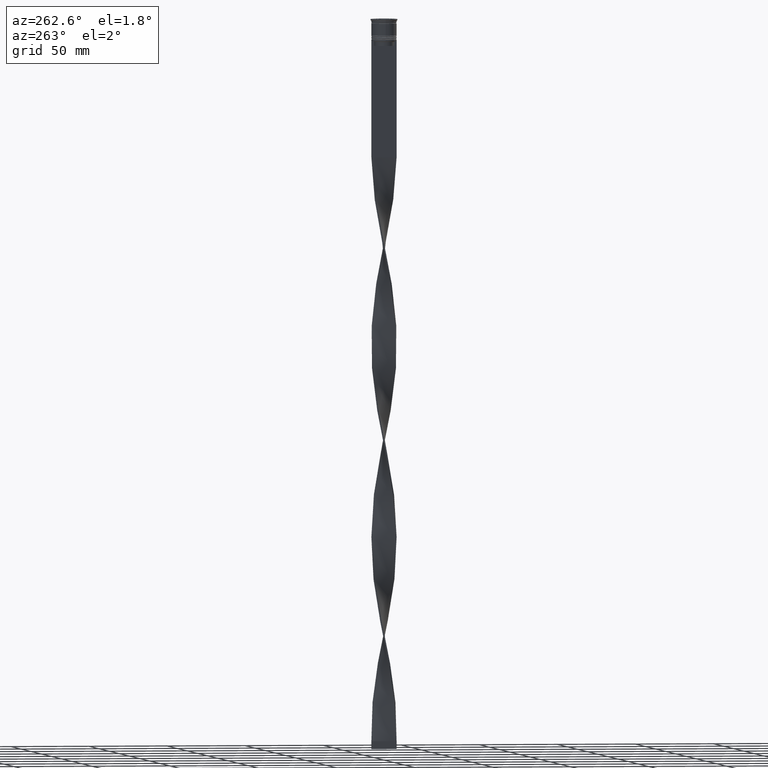
[diagram: clean part render]
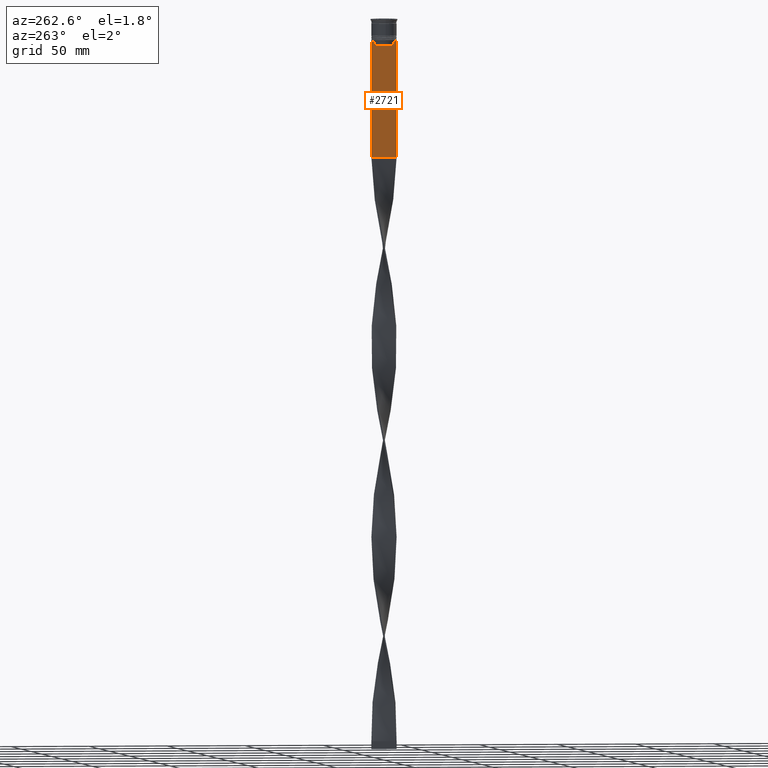
[diagram: same view with one face highlighted and labeled with its STEP entity id]
A machine part, auxiliary view. The second image highlights one B-rep face of the part: STEP entity #2721.
In plain terms, the highlighted planar face has unit normal (-1, 0, 0).
Its self-contained STEP definition (entity closure, byte-faithful):
#91 = EDGE_CURVE ( 'NONE', #1375, #359, #1777, .T. ) ;
#107 = VECTOR ( 'NONE', #3423, 1000.000000000000000 ) ;
#127 = CARTESIAN_POINT ( 'NONE',  ( -0.4999999999999998890, 6.399999999999999467, -17.00000000000000000 ) ) ;
#147 = CARTESIAN_POINT ( 'NONE',  ( -0.4999999999999998890, -8.000000000000003553, -14.00000000000000178 ) ) ;
#212 = ORIENTED_EDGE ( 'NONE', *, *, #4266, .F. ) ;
#222 = CARTESIAN_POINT ( 'NONE',  ( -0.4999999999999998890, -8.000000000000003553, -88.00000000000000000 ) ) ;
#232 = CARTESIAN_POINT ( 'NONE',  ( -0.4999999999999998890, 7.884161337770806632, -14.00000000000000178 ) ) ;
#329 = VERTEX_POINT ( 'NONE', #1553 ) ;
#349 = ORIENTED_EDGE ( 'NONE', *, *, #889, .F. ) ;
#357 = EDGE_CURVE ( 'NONE', #874, #2316, #3527, .T. ) ;
#359 = VERTEX_POINT ( 'NONE', #2135 ) ;
#362 = VERTEX_POINT ( 'NONE', #4118 ) ;
#468 = CARTESIAN_POINT ( 'NONE',  ( -0.4999999999999998890, 6.380438856379708312, 0.000000000000000000 ) ) ;
#508 = LINE ( 'NONE', #127, #3241 ) ;
#524 = PLANE ( 'NONE',  #3510 ) ;
#559 = DIRECTION ( 'NONE',  ( -1.000000000000000000, 0.000000000000000000, 0.000000000000000000 ) ) ;
#568 = LINE ( 'NONE', #4231, #1693 ) ;
#598 = EDGE_CURVE ( 'NONE', #2487, #1923, #1904, .T. ) ;
#746 = CARTESIAN_POINT ( 'NONE',  ( -0.4999999999999998890, -8.000000000000003553, -14.00000000000000178 ) ) ;
#766 = DIRECTION ( 'NONE',  ( 0.000000000000000000, -1.000000000000000000, 0.000000000000000000 ) ) ;
#803 = CARTESIAN_POINT ( 'NONE',  ( -0.4999999999999998890, -6.547597841511246131, -14.33335192438652328 ) ) ;
#845 = FACE_OUTER_BOUND ( 'NONE', #1794, .T. ) ;
#874 = VERTEX_POINT ( 'NONE', #3183 ) ;
#889 = EDGE_CURVE ( 'NONE', #362, #874, #568, .T. ) ;
#915 = CARTESIAN_POINT ( 'NONE',  ( -0.4999999999999998890, -8.000000000000003553, 2.031219541881394530 ) ) ;
#917 = DIRECTION ( 'NONE',  ( 0.000000000000000000, -1.000000000000000000, 0.000000000000000000 ) ) ;
#945 = ORIENTED_EDGE ( 'NONE', *, *, #91, .F. ) ;
#1015 = CARTESIAN_POINT ( 'NONE',  ( -0.4999999999999998890, -8.000000000000003553, -14.00000000000000178 ) ) ;
#1023 = CARTESIAN_POINT ( 'NONE',  ( -0.4999999999999998890, 7.999999999999996447, 2.031219541881394530 ) ) ;
#1042 = LINE ( 'NONE', #1023, #1835 ) ;
#1071 = CARTESIAN_POINT ( 'NONE',  ( -0.4999999999999998890, 6.881860213634098500, -14.00000000000000178 ) ) ;
#1091 = LINE ( 'NONE', #746, #107 ) ;
#1101 = DIRECTION ( 'NONE',  ( 0.000000000000000000, -1.000000000000000000, 0.000000000000000000 ) ) ;
#1154 = VECTOR ( 'NONE', #3818, 1000.000000000000000 ) ;
#1178 = B_SPLINE_CURVE_WITH_KNOTS ( 'NONE', 3,
 ( #2653, #2949, #1616, #1321 ),
 .UNSPECIFIED., .F., .F.,
 ( 4, 4 ),
 ( 0.01172465562756038263, 0.01243276816391822651 ),
 .UNSPECIFIED. ) ;
#1201 = ORIENTED_EDGE ( 'NONE', *, *, #2192, .F. ) ;
#1272 = VECTOR ( 'NONE', #1101, 1000.000000000000000 ) ;
#1320 = ORIENTED_EDGE ( 'NONE', *, *, #598, .F. ) ;
#1321 = CARTESIAN_POINT ( 'NONE',  ( -0.4999999999999998890, 6.380438856379708312, -14.50000000000000000 ) ) ;
#1375 = VERTEX_POINT ( 'NONE', #1527 ) ;
#1398 = LINE ( 'NONE', #3015, #2039 ) ;
#1421 = VECTOR ( 'NONE', #1481, 1000.000000000000000 ) ;
#1481 = DIRECTION ( 'NONE',  ( 0.000000000000000000, -1.000000000000000000, 0.000000000000000000 ) ) ;
#1527 = CARTESIAN_POINT ( 'NONE',  ( -0.4999999999999998890, -7.884161337770806632, -14.00000000000000178 ) ) ;
#1553 = CARTESIAN_POINT ( 'NONE',  ( -0.4999999999999998890, 7.999999999999996447, -14.00000000000000178 ) ) ;
#1595 = EDGE_CURVE ( 'NONE', #1851, #1880, #1178, .T. ) ;
#1616 = CARTESIAN_POINT ( 'NONE',  ( -0.4999999999999998890, 6.547597841304911626, -14.33335192459222718 ) ) ;
#1693 = VECTOR ( 'NONE', #2910, 1000.000000000000000 ) ;
#1751 = CARTESIAN_POINT ( 'NONE',  ( -0.4999999999999998890, -8.000000000000003553, -14.00000000000000178 ) ) ;
#1777 = LINE ( 'NONE', #1751, #1272 ) ;
#1794 = EDGE_LOOP ( 'NONE', ( #2077, #3512, #3065, #1970, #1320, #4264, #945, #1201, #2279, #349, #4078, #212 ) ) ;
#1835 = VECTOR ( 'NONE', #2022, 1000.000000000000000 ) ;
#1851 = VERTEX_POINT ( 'NONE', #1071 ) ;
#1880 = VERTEX_POINT ( 'NONE', #2760 ) ;
#1904 = LINE ( 'NONE', #222, #2504 ) ;
#1923 = VERTEX_POINT ( 'NONE', #3449 ) ;
#1934 = EDGE_CURVE ( 'NONE', #359, #2487, #1398, .T. ) ;
#1970 = ORIENTED_EDGE ( 'NONE', *, *, #2557, .T. ) ;
#2022 = DIRECTION ( 'NONE',  ( 0.000000000000000000, 0.000000000000000000, -1.000000000000000000 ) ) ;
#2039 = VECTOR ( 'NONE', #2048, 1000.000000000000000 ) ;
#2048 = DIRECTION ( 'NONE',  ( 0.000000000000000000, 0.000000000000000000, -1.000000000000000000 ) ) ;
#2077 = ORIENTED_EDGE ( 'NONE', *, *, #1595, .F. ) ;
#2095 = CARTESIAN_POINT ( 'NONE',  ( -0.4999999999999998890, -6.881860213634098500, -14.00000000000000178 ) ) ;
#2135 = CARTESIAN_POINT ( 'NONE',  ( -0.4999999999999998890, -8.000000000000003553, -14.00000000000000178 ) ) ;
#2143 = LINE ( 'NONE', #468, #1154 ) ;
#2192 = EDGE_CURVE ( 'NONE', #2316, #1375, #3142, .T. ) ;
#2279 = ORIENTED_EDGE ( 'NONE', *, *, #357, .F. ) ;
#2316 = VERTEX_POINT ( 'NONE', #3995 ) ;
#2487 = VERTEX_POINT ( 'NONE', #3736 ) ;
#2500 = DIRECTION ( 'NONE',  ( 0.000000000000000000, 0.000000000000000000, 1.000000000000000000 ) ) ;
#2504 = VECTOR ( 'NONE', #4254, 1000.000000000000000 ) ;
#2557 = EDGE_CURVE ( 'NONE', #329, #1923, #1042, .T. ) ;
#2635 = CARTESIAN_POINT ( 'NONE',  ( -0.4999999999999998890, 6.380438856379708312, -17.00000000000000000 ) ) ;
#2653 = CARTESIAN_POINT ( 'NONE',  ( -0.4999999999999998890, 6.881860213634098500, -14.00000000000000178 ) ) ;
#2721 = ADVANCED_FACE ( 'NONE', ( #845 ), #524, .T. ) ;
#2760 = CARTESIAN_POINT ( 'NONE',  ( -0.4999999999999998890, 6.380438856379708312, -14.50000000000000000 ) ) ;
#2788 = CARTESIAN_POINT ( 'NONE',  ( -0.4999999999999998890, -6.714736947305992132, -14.16668390685738999 ) ) ;
#2910 = DIRECTION ( 'NONE',  ( -0.000000000000000000, -0.000000000000000000, 1.000000000000000000 ) ) ;
#2949 = CARTESIAN_POINT ( 'NONE',  ( -0.4999999999999998890, 6.714736947114692711, -14.16668390704818847 ) ) ;
#3015 = CARTESIAN_POINT ( 'NONE',  ( -0.4999999999999998890, -8.000000000000003553, 2.031219541881394530 ) ) ;
#3065 = ORIENTED_EDGE ( 'NONE', *, *, #3506, .F. ) ;
#3142 = LINE ( 'NONE', #147, #1421 ) ;
#3183 = CARTESIAN_POINT ( 'NONE',  ( -0.4999999999999998890, -6.380438856379708312, -14.50000000000000000 ) ) ;
#3241 = VECTOR ( 'NONE', #766, 1000.000000000000000 ) ;
#3423 = DIRECTION ( 'NONE',  ( 0.000000000000000000, -1.000000000000000000, 0.000000000000000000 ) ) ;
#3449 = CARTESIAN_POINT ( 'NONE',  ( -0.4999999999999998890, 7.999999999999996447, -88.00000000000000000 ) ) ;
#3506 = EDGE_CURVE ( 'NONE', #329, #3816, #3612, .T. ) ;
#3510 = AXIS2_PLACEMENT_3D ( 'NONE', #915, #559, #2500 ) ;
#3512 = ORIENTED_EDGE ( 'NONE', *, *, #4030, .F. ) ;
#3527 = B_SPLINE_CURVE_WITH_KNOTS ( 'NONE', 3,
 ( #3813, #803, #2788, #2095 ),
 .UNSPECIFIED., .F., .F.,
 ( 4, 4 ),
 ( 0.02996184199614749730, 0.03067452609193703841 ),
 .UNSPECIFIED. ) ;
#3612 = LINE ( 'NONE', #1015, #3667 ) ;
#3667 = VECTOR ( 'NONE', #917, 1000.000000000000000 ) ;
#3696 = VERTEX_POINT ( 'NONE', #2635 ) ;
#3736 = CARTESIAN_POINT ( 'NONE',  ( -0.4999999999999998890, -8.000000000000003553, -88.00000000000000000 ) ) ;
#3813 = CARTESIAN_POINT ( 'NONE',  ( -0.4999999999999998890, -6.380438856379708312, -14.50000000000000000 ) ) ;
#3816 = VERTEX_POINT ( 'NONE', #232 ) ;
#3818 = DIRECTION ( 'NONE',  ( 0.000000000000000000, 0.000000000000000000, -1.000000000000000000 ) ) ;
#3995 = CARTESIAN_POINT ( 'NONE',  ( -0.4999999999999998890, -6.881860213634098500, -14.00000000000000178 ) ) ;
#4030 = EDGE_CURVE ( 'NONE', #3816, #1851, #1091, .T. ) ;
#4075 = EDGE_CURVE ( 'NONE', #3696, #362, #508, .T. ) ;
#4078 = ORIENTED_EDGE ( 'NONE', *, *, #4075, .F. ) ;
#4118 = CARTESIAN_POINT ( 'NONE',  ( -0.4999999999999998890, -6.380438856379708312, -17.00000000000000000 ) ) ;
#4231 = CARTESIAN_POINT ( 'NONE',  ( -0.4999999999999998890, -6.380438856379708312, 0.000000000000000000 ) ) ;
#4254 = DIRECTION ( 'NONE',  ( 0.000000000000000000, 1.000000000000000000, 0.000000000000000000 ) ) ;
#4264 = ORIENTED_EDGE ( 'NONE', *, *, #1934, .F. ) ;
#4266 = EDGE_CURVE ( 'NONE', #1880, #3696, #2143, .T. ) ;